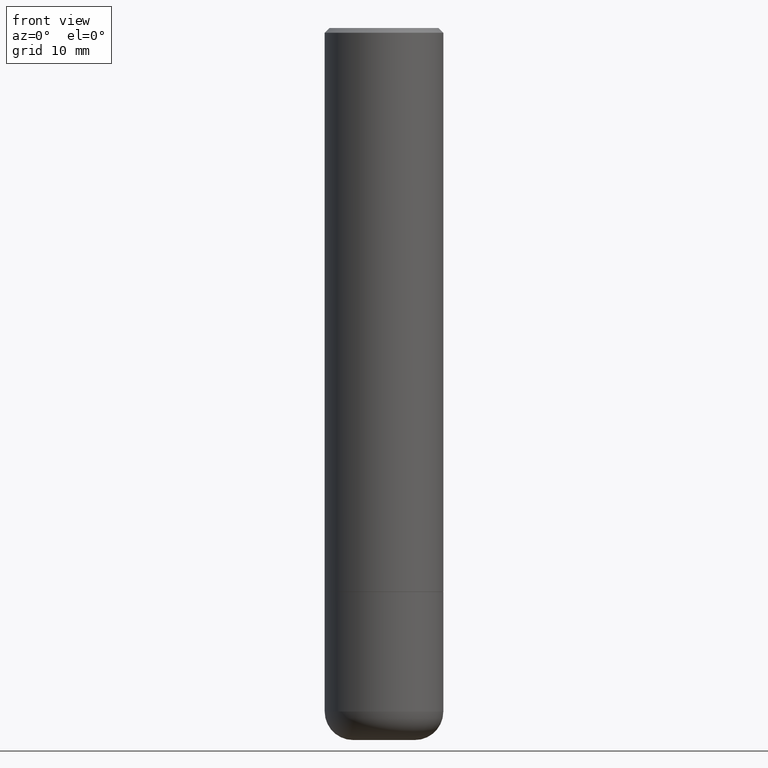
[diagram: clean part render]
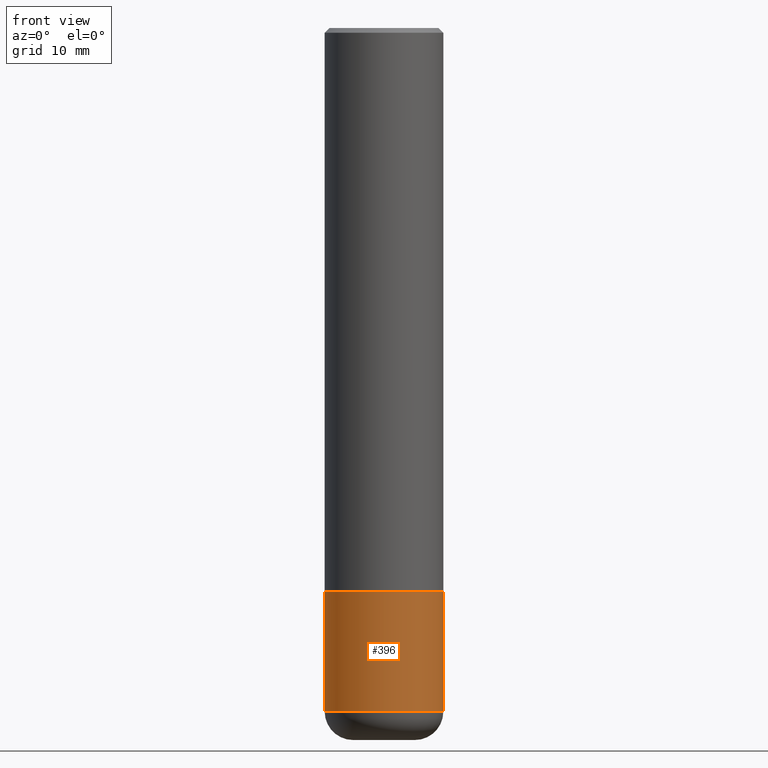
[diagram: same view with one face highlighted and labeled with its STEP entity id]
A machine part, front view. The second image highlights one B-rep face of the part: STEP entity #396.
In plain terms, the highlighted cylindrical surface (partial cylindrical patch) has radius 6.35 mm, axis along (-0, 0, 1).
Its self-contained STEP definition (entity closure, byte-faithful):
#4 = CARTESIAN_POINT ( 'NONE',  ( -0.2499999999999998057, 1.776356839400249084E-15, -1.229733772563725465E-29 ) ) ;
#12 = AXIS2_PLACEMENT_3D ( 'NONE', #177, #255, #410 ) ;
#26 = DIRECTION ( 'NONE',  ( 1.000000000000000000, -6.982962677686266711E-15, 4.876176775795935793E-29 ) ) ;
#40 = EDGE_CURVE ( 'NONE', #335, #199, #492, .T. ) ;
#44 = DIRECTION ( 'NONE',  ( -2.445468806185136877E-29, 3.491481338843145188E-15, 1.000000000000000000 ) ) ;
#46 = EDGE_CURVE ( 'NONE', #199, #375, #399, .T. ) ;
#55 = CARTESIAN_POINT ( 'NONE',  ( 0.2499999999999998057, -1.745740669421565297E-15, 1.219044193948982967E-29 ) ) ;
#63 = FACE_OUTER_BOUND ( 'NONE', #377, .T. ) ;
#68 = DIRECTION ( 'NONE',  ( -2.445468806185136597E-29, 3.491481338843145583E-15, 1.000000000000000000 ) ) ;
#69 = AXIS2_PLACEMENT_3D ( 'NONE', #487, #457, #160 ) ;
#97 = ORIENTED_EDGE ( 'NONE', *, *, #40, .F. ) ;
#102 = CARTESIAN_POINT ( 'NONE',  ( 0.2500000000000000555, -1.180122287867913443E-14, -2.880004569232299527 ) ) ;
#126 = VECTOR ( 'NONE', #44, 39.37007874015748143 ) ;
#160 = DIRECTION ( 'NONE',  ( 1.000000000000000000, -6.982962677686262766E-15, 0.000000000000000000 ) ) ;
#174 = LINE ( 'NONE', #55, #408 ) ;
#177 = CARTESIAN_POINT ( 'NONE',  ( 7.042961335728249090E-29, -1.005548220925756617E-14, -2.880004569232299527 ) ) ;
#199 = VERTEX_POINT ( 'NONE', #462 ) ;
#212 = CARTESIAN_POINT ( 'NONE',  ( 0.2499999999999995837, -1.003800884917403364E-14, -2.375000000000000000 ) ) ;
#249 = CARTESIAN_POINT ( 'NONE',  ( -0.2500000000000000555, -7.397518355104768470E-15, -2.880004569232299527 ) ) ;
#255 = DIRECTION ( 'NONE',  ( -2.445468806185136597E-29, 3.491481338843145583E-15, 1.000000000000000000 ) ) ;
#269 = ORIENTED_EDGE ( 'NONE', *, *, #46, .F. ) ;
#278 = EDGE_CURVE ( 'NONE', #347, #375, #174, .T. ) ;
#308 = AXIS2_PLACEMENT_3D ( 'NONE', #437, #68, #26 ) ;
#332 = ORIENTED_EDGE ( 'NONE', *, *, #278, .T. ) ;
#335 = VERTEX_POINT ( 'NONE', #249 ) ;
#347 = VERTEX_POINT ( 'NONE', #102 ) ;
#351 = EDGE_CURVE ( 'NONE', #335, #347, #466, .T. ) ;
#372 = ORIENTED_EDGE ( 'NONE', *, *, #351, .T. ) ;
#375 = VERTEX_POINT ( 'NONE', #212 ) ;
#377 = EDGE_LOOP ( 'NONE', ( #97, #372, #332, #269 ) ) ;
#396 = ADVANCED_FACE ( 'NONE', ( #63 ), #447, .T. ) ;
#399 = CIRCLE ( 'NONE', #69, 0.2499999999999995837 ) ;
#408 = VECTOR ( 'NONE', #474, 39.37007874015748143 ) ;
#410 = DIRECTION ( 'NONE',  ( 1.000000000000000000, -6.982962677686269077E-15, 0.000000000000000000 ) ) ;
#437 = CARTESIAN_POINT ( 'NONE',  ( 0.000000000000000000, 0.000000000000000000, 0.000000000000000000 ) ) ;
#447 = CYLINDRICAL_SURFACE ( 'NONE', #308, 0.2499999999999998057 ) ;
#457 = DIRECTION ( 'NONE',  ( -2.445468806185136597E-29, 3.491481338843145583E-15, 1.000000000000000000 ) ) ;
#462 = CARTESIAN_POINT ( 'NONE',  ( -0.2499999999999995837, -7.397518355104770047E-15, -2.375000000000000000 ) ) ;
#466 = CIRCLE ( 'NONE', #12, 0.2500000000000000555 ) ;
#474 = DIRECTION ( 'NONE',  ( -2.445468806185136877E-29, 3.491481338843145188E-15, 1.000000000000000000 ) ) ;
#487 = CARTESIAN_POINT ( 'NONE',  ( 5.807988414689700538E-29, -8.292268179752471696E-15, -2.375000000000000000 ) ) ;
#492 = LINE ( 'NONE', #4, #126 ) ;